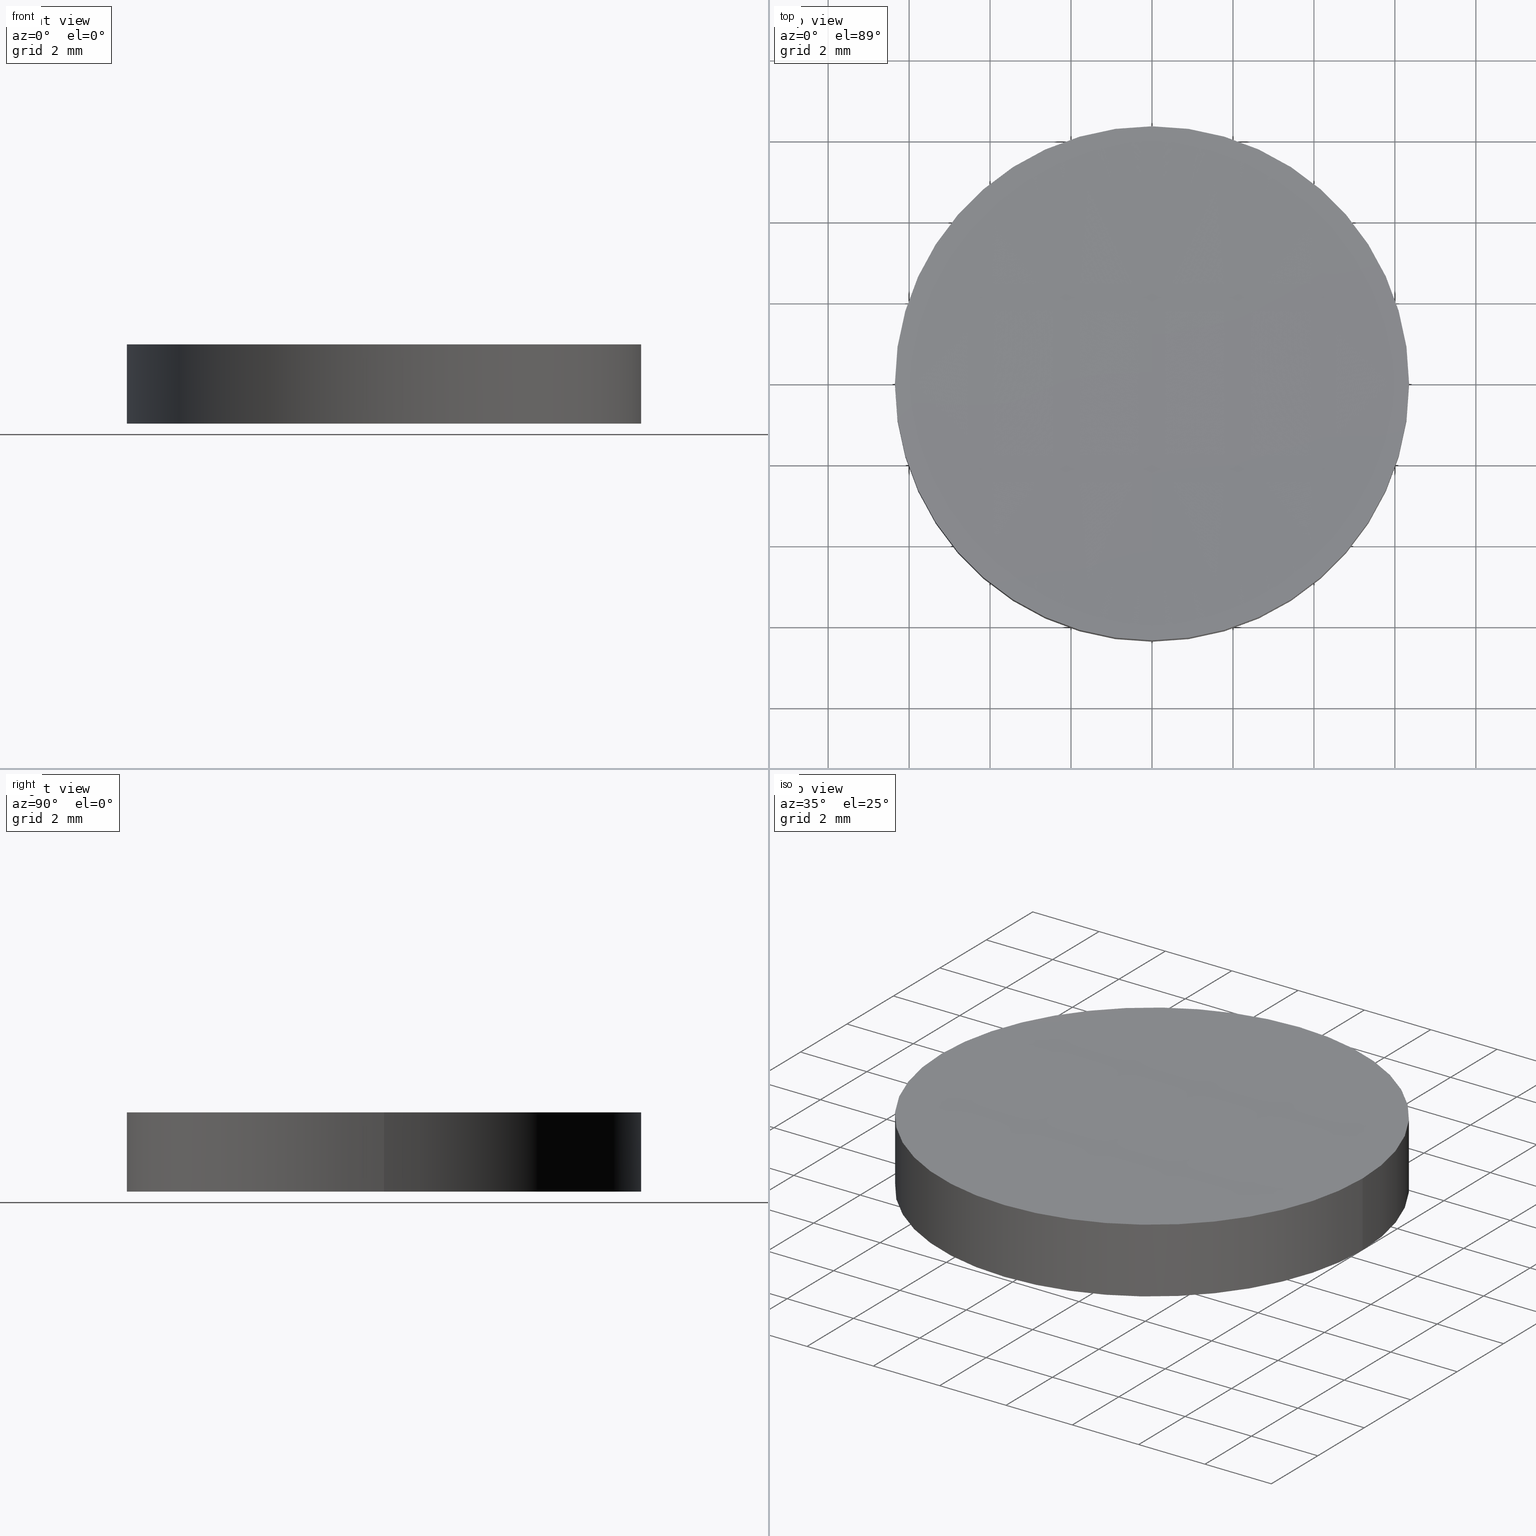
[diagram: canonical four-view strip — front | top / right | iso, engineering-drawing reading convention]
A machine part, canonical four-view strip (front | top / right | iso — engineering-drawing reading convention). The complete STEP part file that produces these views, byte-faithful:
ISO-10303-21;
HEADER;
FILE_DESCRIPTION (( 'STEP AP203' ),
    '1' );
FILE_NAME ('114-0132E BK7 bi-cv 12.7 F-250.STEP',
    '2019-01-21T00:25:54',
    ( '' ),
    ( '' ),
    'SwSTEP 2.0',
    'SolidWorks 2017',
    '' );
FILE_SCHEMA (( 'CONFIG_CONTROL_DESIGN' ));
ENDSEC;

DATA;
#1 = DIRECTION ( 'NONE',  ( 1.000000000000000000, 0.0000000000000000000, 0.0000000000000000000 ) ) ;
#2 = APPROVAL_DATE_TIME ( #141, #48 ) ;
#3 = CARTESIAN_POINT ( 'NONE',  ( -2.128980519806766400, -6.426184536089220200, -0.07951900455132468500 ) ) ;
#4 = ORIENTED_EDGE ( 'NONE', *, *, #233, .T. ) ;
#5 = CARTESIAN_POINT ( 'NONE',  ( 6.349999999999999600, 1.221245327087670000E-015, -0.07764445256259830400 ) ) ;
#6 = CARTESIAN_POINT ( 'NONE',  ( 2.129850009775330100, -2.142498861219060300, 0.02651174670438362400 ) ) ;
#7 = APPROVAL_STATUS ( 'not_yet_approved' ) ;
#8 = AXIS2_PLACEMENT_3D ( 'NONE', #32, #264, #73 ) ;
#9 = PERSON_AND_ORGANIZATION_ROLE ( 'design_owner' ) ;
#10 = CARTESIAN_POINT ( 'NONE',  ( -4.259538903191590900, -2.142498861219060700, 1.799685226399271100 ) ) ;
#11 = LOCAL_TIME ( 2, 25, 54.00000000000000000, #67 ) ;
#12 = VERTEX_POINT ( 'NONE', #107 ) ;
#13 = AXIS2_PLACEMENT_3D ( 'NONE', #114, #276, #89 ) ;
#14 = ORGANIZATION ( 'UNSPECIFIED', 'UNSPECIFIED', '' ) ;
#15 = CARTESIAN_POINT ( 'NONE',  ( 2.128980519806762000, 6.426184536089197200, 1.879519004551348300 ) ) ;
#16 = ORIENTED_EDGE ( 'NONE', *, *, #109, .T. ) ;
#17 = DIRECTION ( 'NONE',  ( 0.0000000000000000000, 0.0000000000000000000, 1.000000000000000000 ) ) ;
#18 = DIRECTION ( 'NONE',  ( -1.000000000000000000, -2.237857218932010100E-016, -3.277692368538199900E-017 ) ) ;
#19 = DATE_AND_TIME ( #79, #110 ) ;
#20 =( GEOMETRIC_REPRESENTATION_CONTEXT ( 3 ) GLOBAL_UNCERTAINTY_ASSIGNED_CONTEXT ( ( #289 ) ) GLOBAL_UNIT_ASSIGNED_CONTEXT ( ( #102, #97, #242 ) ) REPRESENTATION_CONTEXT ( 'NONE', 'WORKASPACE' ) );
#21 = CARTESIAN_POINT ( 'NONE',  ( 9.519578976003125300E-014, -6.349999999999807800, 1.877644452562605000 ) ) ;
#22 = PERSON_AND_ORGANIZATION ( #122, #14 ) ;
#23 = ORIENTED_EDGE ( 'NONE', *, *, #277, .F. ) ;
#24 = CARTESIAN_POINT ( 'NONE',  ( -2.129850009775576100, 2.142498861219035400, 0.02651174670439010800 ) ) ;
#25 = CARTESIAN_POINT ( 'NONE',  ( -9.425762500011748200E-014, -2.142498861219060300, 0.02651174670438355100 ) ) ;
#26 = EDGE_LOOP ( 'NONE', ( #60, #111, #16, #281, #49, #139 ) ) ;
#27 = APPROVAL_ROLE ( '' ) ;
#28 = CARTESIAN_POINT ( 'NONE',  ( -6.388744471906244700, 2.142498861219033700, 1.852075209171659700 ) ) ;
#29 = PERSON_AND_ORGANIZATION ( #122, #14 ) ;
#30 = CIRCLE ( 'NONE', #159, 259.6999999999999900 ) ;
#31 = AXIS2_PLACEMENT_3D ( 'NONE', #148, #118, #45 ) ;
#32 = CARTESIAN_POINT ( 'NONE',  ( 2.498001805406600200E-016, 1.221245327087670000E-015, 1.877644452562599900 ) ) ;
#33 = ORIENTED_EDGE ( 'NONE', *, *, #163, .F. ) ;
#34 = FACE_OUTER_BOUND ( 'NONE', #284, .T. ) ;
#35 = ADVANCED_FACE ( 'NONE', ( #155 ), #279, .F. ) ;
#36 = CARTESIAN_POINT ( 'NONE',  ( 2.129850009775577000, -2.142498861219059000, 1.773488253295633300 ) ) ;
#37 = ORIENTED_EDGE ( 'NONE', *, *, #233, .F. ) ;
#38 = EDGE_CURVE ( 'NONE', #197, #12, #202, .T. ) ;
#39 = DIRECTION ( 'NONE',  ( -2.237857218932010100E-016, 1.000000000000000000, 0.0000000000000000000 ) ) ;
#40 = FACE_OUTER_BOUND ( 'NONE', #26, .T. ) ;
#41 = EDGE_LOOP ( 'NONE', ( #188, #246, #266, #4, #288, #33 ) ) ;
#42 = CARTESIAN_POINT ( 'NONE',  ( 8.526512829121199700E-014, 0.0000000000000000000, 261.5000000000000000 ) ) ;
#43 = CARTESIAN_POINT ( 'NONE',  ( 9.233660063853434100E-014, 6.426184536089196300, 1.879519004551355500 ) ) ;
#44 = CARTESIAN_POINT ( 'NONE',  ( 6.386136330860566100, -6.426184536089222900, -0.1580738780884536900 ) ) ;
#45 = DIRECTION ( 'NONE',  ( 1.000000000000000000, 0.0000000000000000000, 0.0000000000000000000 ) ) ;
#46 = CARTESIAN_POINT ( 'NONE',  ( -2.128980519806519500, 6.426184536089195400, 1.879519004551355500 ) ) ;
#47 = APPROVAL_STATUS ( 'not_yet_approved' ) ;
#48 = APPROVAL ( #7, 'UNSPECIFIED' ) ;
#49 = ORIENTED_EDGE ( 'NONE', *, *, #100, .T. ) ;
#50 = EDGE_CURVE ( 'NONE', #103, #197, #87, .T. ) ;
#51 = CARTESIAN_POINT ( 'NONE',  ( -6.388744471906243800, -2.142498861219061600, 1.852075209171659200 ) ) ;
#52 = PERSON_AND_ORGANIZATION_ROLE ( 'creator' ) ;
#53 = APPLICATION_CONTEXT ( 'configuration controlled 3d designs of mechanical parts and assemblies' ) ;
#54 = ORIENTED_EDGE ( 'NONE', *, *, #109, .F. ) ;
#55 = PRODUCT_DEFINITION ( 'UNKNOWN', '', #75, #250 ) ;
#56 = CARTESIAN_POINT ( 'NONE',  ( -9.235371109198769400E-014, 6.349999999999808700, -0.07764445256259233700 ) ) ;
#57 = CARTESIAN_POINT ( 'NONE',  ( 6.388744471906481000, 2.142498861219036800, 1.852075209171677700 ) ) ;
#58 = CARTESIAN_POINT ( 'NONE',  ( 6.386136330860806800, -6.426184536089219400, 1.958073878088495400 ) ) ;
#59 = AXIS2_PLACEMENT_3D ( 'NONE', #198, #133, #218 ) ;
#60 = ORIENTED_EDGE ( 'NONE', *, *, #38, .F. ) ;
#61 = DIRECTION ( 'NONE',  ( -0.0000000000000000000, -0.0000000000000000000, -1.000000000000000000 ) ) ;
#62 = DIRECTION ( 'NONE',  ( 0.0000000000000000000, 0.0000000000000000000, 1.000000000000000000 ) ) ;
#63 = CARTESIAN_POINT ( 'NONE',  ( 4.257799989028111300, 6.426184536089195400, -0.1057052830026524400 ) ) ;
#64 = LOCAL_TIME ( 2, 25, 54.00000000000000000, #290 ) ;
#65 = AXIS2_PLACEMENT_3D ( 'NONE', #203, #62, #185 ) ;
#66 = DIRECTION ( 'NONE',  ( -0.0000000000000000000, -0.0000000000000000000, -1.000000000000000000 ) ) ;
#67 = COORDINATED_UNIVERSAL_TIME_OFFSET ( 2, 0, .AHEAD. ) ;
#68 = VECTOR ( 'NONE', #138, 1000.000000000000000 ) ;
#69 = CARTESIAN_POINT ( 'NONE',  ( 6.388744471906244700, 2.142498861219033700, -0.05207520917163602900 ) ) ;
#70 = CARTESIAN_POINT ( 'NONE',  ( -4.259538903191835100, -2.142498861219058500, 0.0003147736007353074900 ) ) ;
#71 = DIRECTION ( 'NONE',  ( 0.0000000000000000000, 0.0000000000000000000, 1.000000000000000000 ) ) ;
#72 = APPROVAL ( #127, 'UNSPECIFIED' ) ;
#73 = DIRECTION ( 'NONE',  ( 1.000000000000000000, 0.0000000000000000000, 0.0000000000000000000 ) ) ;
#74 = APPROVAL_ROLE ( '' ) ;
#75 = PRODUCT_DEFINITION_FORMATION_WITH_SPECIFIED_SOURCE ( 'ANY', '', #209, .NOT_KNOWN. ) ;
#76 = DATE_AND_TIME ( #278, #11 ) ;
#77 = EDGE_LOOP ( 'NONE', ( #175, #274, #165 ) ) ;
#78 = CARTESIAN_POINT ( 'NONE',  ( -2.129850009775330100, -2.142498861219060300, 1.773488253295640400 ) ) ;
#79 = CALENDAR_DATE ( 2019, 21, 1 ) ;
#80 = CARTESIAN_POINT ( 'NONE',  ( -6.349999999999999600, 1.998896044546239400E-015, -0.07764445256259830400 ) ) ;
#81 = CARTESIAN_POINT ( 'NONE',  ( 1.569924745759010700E-013, -2.142498861219059900, 1.773488253295632600 ) ) ;
#82 = CIRCLE ( 'NONE', #59, 259.6999999999999900 ) ;
#83 =( BOUNDED_SURFACE ( )  B_SPLINE_SURFACE ( 3, 3, ( 
 ( #231, #254, #63, #142 ),
 ( #160, #164, #167, #69 ),
 ( #25, #6, #186, #166 ),
 ( #124, #189, #236, #44 ) ),
 .UNSPECIFIED., .F., .F., .F. ) 
 B_SPLINE_SURFACE_WITH_KNOTS ( ( 4, 4 ),
 ( 4, 4 ),
 ( 0.0000000000000000000, 1.000000000000000000 ),
 ( 0.0000000000000000000, 1.000000000000000000 ),
 .UNSPECIFIED. ) 
 GEOMETRIC_REPRESENTATION_ITEM ( )  RATIONAL_B_SPLINE_SURFACE ( (
 ( 1.000000000000000000, 0.9999495687932881100, 0.9999495687932881100, 1.000000000000000000),
 ( 0.9997958695814366200, 0.9997454486692680700, 0.9997454486692680700, 0.9997958695814366200),
 ( 0.9997958695814366200, 0.9997454486692680700, 0.9997454486692680700, 0.9997958695814366200),
 ( 1.000000000000000000, 0.9999495687932881100, 0.9999495687932881100, 1.000000000000000000) ) ) 
 REPRESENTATION_ITEM ( '' )  SURFACE ( )  );
#84 = CARTESIAN_POINT ( 'NONE',  ( 6.386136330860803200, 6.426184536089198000, 1.958073878088495400 ) ) ;
#85 = CC_DESIGN_APPROVAL ( #172, ( #75 ) ) ;
#86 = CARTESIAN_POINT ( 'NONE',  ( 4.259538903191835100, 2.142498861219035900, 1.799685226399288900 ) ) ;
#87 = CIRCLE ( 'NONE', #208, 6.349999999999999600 ) ;
#88 = DIRECTION ( 'NONE',  ( 1.000000000000000000, 0.0000000000000000000, 0.0000000000000000000 ) ) ;
#89 = DIRECTION ( 'NONE',  ( 1.000000000000000000, 0.0000000000000000000, 0.0000000000000000000 ) ) ;
#90 = DATE_AND_TIME ( #156, #64 ) ;
#91 = LINE ( 'NONE', #113, #180 ) ;
#92 = CC_DESIGN_PERSON_AND_ORGANIZATION_ASSIGNMENT ( #174, #192, ( #229 ) ) ;
#93 = CARTESIAN_POINT ( 'NONE',  ( -6.388744471906481900, -2.142498861219058500, -0.05207520917165357100 ) ) ;
#94 = VERTEX_POINT ( 'NONE', #158 ) ;
#95 = CARTESIAN_POINT ( 'NONE',  ( -6.386136330860806800, -6.426184536089219400, -0.1580738780884716200 ) ) ;
#96 = CARTESIAN_POINT ( 'NONE',  ( -6.386136330860569600, 6.426184536089194500, 1.958073878088477200 ) ) ;
#97 =( NAMED_UNIT ( * ) PLANE_ANGLE_UNIT ( ) SI_UNIT ( $, .RADIAN. ) );
#98 = COORDINATED_UNIVERSAL_TIME_OFFSET ( 2, 0, .AHEAD. ) ;
#99 = CIRCLE ( 'NONE', #65, 6.349999999999999600 ) ;
#100 = EDGE_CURVE ( 'NONE', #131, #222, #238, .T. ) ;
#101 = DIRECTION ( 'NONE',  ( 1.000000000000000000, 0.0000000000000000000, 0.0000000000000000000 ) ) ;
#102 =( LENGTH_UNIT ( ) NAMED_UNIT ( * ) SI_UNIT ( .MILLI., .METRE. ) );
#103 = VERTEX_POINT ( 'NONE', #56 ) ;
#104 = CC_DESIGN_APPROVAL ( #72, ( #55 ) ) ;
#105 = PERSON_AND_ORGANIZATION ( #122, #14 ) ;
#106 =( BOUNDED_SURFACE ( )  B_SPLINE_SURFACE ( 3, 3, ( 
 ( #150, #145, #146, #210 ),
 ( #123, #255, #24, #282 ),
 ( #93, #70, #280, #207 ),
 ( #95, #212, #3, #258 ) ),
 .UNSPECIFIED., .F., .F., .T. ) 
 B_SPLINE_SURFACE_WITH_KNOTS ( ( 4, 4 ),
 ( 4, 4 ),
 ( 0.0000000000000000000, 1.000000000000000000 ),
 ( 0.0000000000000000000, 1.000000000000000000 ),
 .UNSPECIFIED. ) 
 GEOMETRIC_REPRESENTATION_ITEM ( )  RATIONAL_B_SPLINE_SURFACE ( (
 ( 1.000000000000000000, 0.9999495687932881100, 0.9999495687932881100, 1.000000000000000000),
 ( 0.9997958695814366200, 0.9997454486692680700, 0.9997454486692680700, 0.9997958695814366200),
 ( 0.9997958695814366200, 0.9997454486692680700, 0.9997454486692680700, 0.9997958695814366200),
 ( 1.000000000000000000, 0.9999495687932881100, 0.9999495687932881100, 1.000000000000000000) ) ) 
 REPRESENTATION_ITEM ( '' )  SURFACE ( )  );
#107 = CARTESIAN_POINT ( 'NONE',  ( -6.349999999999999600, 1.998896044546239400E-015, 1.877644452562599900 ) ) ;
#108 = CARTESIAN_POINT ( 'NONE',  ( 1.578598363138894500E-013, -6.426184536089221100, 1.879519004551347900 ) ) ;
#109 = EDGE_CURVE ( 'NONE', #94, #219, #170, .T. ) ;
#110 = LOCAL_TIME ( 2, 25, 54.00000000000000000, #98 ) ;
#111 = ORIENTED_EDGE ( 'NONE', *, *, #132, .T. ) ;
#112 = DIRECTION ( 'NONE',  ( -0.0000000000000000000, -0.0000000000000000000, -1.000000000000000000 ) ) ;
#113 = CARTESIAN_POINT ( 'NONE',  ( 6.349999999999999600, 1.221245327087670000E-015, -0.07764445256259830400 ) ) ;
#114 = CARTESIAN_POINT ( 'NONE',  ( 2.498001805406600200E-016, 1.221245327087670000E-015, -0.07764445256259830400 ) ) ;
#115 = SHAPE_DEFINITION_REPRESENTATION ( #137, #173 ) ;
#116 = ORIENTED_EDGE ( 'NONE', *, *, #178, .T. ) ;
#117 = CARTESIAN_POINT ( 'NONE',  ( 2.498001805406600200E-016, 1.221245327087670000E-015, 1.877644452562599900 ) ) ;
#118 = DIRECTION ( 'NONE',  ( 0.0000000000000000000, 0.0000000000000000000, 1.000000000000000000 ) ) ;
#119 = APPROVAL_PERSON_ORGANIZATION ( #217, #72, #196 ) ;
#120 = CYLINDRICAL_SURFACE ( 'NONE', #31, 6.349999999999999600 ) ;
#121 = CC_DESIGN_PERSON_AND_ORGANIZATION_ASSIGNMENT ( #265, #267, ( #75 ) ) ;
#122 = PERSON ( 'UNSPECIFIED', 'UNSPECIFIED', 'UNSPECIFIED', ('UNSPECIFIED'), ('UNSPECIFIED'), ('UNSPECIFIED') ) ;
#123 = CARTESIAN_POINT ( 'NONE',  ( -6.388744471906481000, 2.142498861219036800, -0.05207520917165399400 ) ) ;
#124 = CARTESIAN_POINT ( 'NONE',  ( -9.521277732938965700E-014, -6.426184536089221100, -0.07951900455133165100 ) ) ;
#125 = FACE_OUTER_BOUND ( 'NONE', #77, .T. ) ;
#126 = AXIS2_PLACEMENT_3D ( 'NONE', #205, #17, #1 ) ;
#127 = APPROVAL_STATUS ( 'not_yet_approved' ) ;
#128 = CARTESIAN_POINT ( 'NONE',  ( 9.521277732938964500E-014, -6.426184536089221100, 1.879519004551355500 ) ) ;
#129 = SECURITY_CLASSIFICATION_LEVEL ( 'unclassified' ) ;
#130 = APPROVAL_DATE_TIME ( #76, #72 ) ;
#131 = VERTEX_POINT ( 'NONE', #201 ) ;
#132 = EDGE_CURVE ( 'NONE', #197, #94, #99, .T. ) ;
#133 = DIRECTION ( 'NONE',  ( 1.000000000000000000, -2.237857218932010100E-016, 3.277692368538209700E-017 ) ) ;
#134 = CARTESIAN_POINT ( 'NONE',  ( 2.498001805406600200E-016, 1.221245327087670000E-015, -0.07764445256259830400 ) ) ;
#135 = CARTESIAN_POINT ( 'NONE',  ( 1.561251128379126400E-013, 2.142498861219035400, 1.773488253295633100 ) ) ;
#136 = EDGE_CURVE ( 'NONE', #219, #103, #292, .T. ) ;
#137 = PRODUCT_DEFINITION_SHAPE ( 'NONE', 'NONE',  #55 ) ;
#138 = DIRECTION ( 'NONE',  ( 0.0000000000000000000, 0.0000000000000000000, 1.000000000000000000 ) ) ;
#139 = ORIENTED_EDGE ( 'NONE', *, *, #147, .T. ) ;
#140 = CC_DESIGN_PERSON_AND_ORGANIZATION_ASSIGNMENT ( #273, #9, ( #209 ) ) ;
#141 = DATE_AND_TIME ( #161, #241 ) ;
#142 = CARTESIAN_POINT ( 'NONE',  ( 6.386136330860569600, 6.426184536089194500, -0.1580738780884536900 ) ) ;
#143 = AXIS2_PLACEMENT_3D ( 'NONE', #259, #71, #101 ) ;
#144 = PERSON_AND_ORGANIZATION ( #122, #14 ) ;
#145 = CARTESIAN_POINT ( 'NONE',  ( -4.257799989028350200, 6.426184536089197200, -0.1057052830026699600 ) ) ;
#146 = CARTESIAN_POINT ( 'NONE',  ( -2.128980519806762800, 6.426184536089197200, -0.07951900455132469800 ) ) ;
#147 = EDGE_CURVE ( 'NONE', #222, #12, #234, .T. ) ;
#148 = CARTESIAN_POINT ( 'NONE',  ( 2.498001805406600200E-016, 1.221245327087670000E-015, -0.07764445256259830400 ) ) ;
#149 = ORIENTED_EDGE ( 'NONE', *, *, #178, .F. ) ;
#150 = CARTESIAN_POINT ( 'NONE',  ( -6.386136330860803200, 6.426184536089198000, -0.1580738780884716200 ) ) ;
#151 = DATE_TIME_ROLE ( 'classification_date' ) ;
#152 = CIRCLE ( 'NONE', #8, 6.349999999999999600 ) ;
#153 = FACE_OUTER_BOUND ( 'NONE', #41, .T. ) ;
#154 = CARTESIAN_POINT ( 'NONE',  ( -2.128980519806516400, -6.426184536089222000, 1.879519004551355500 ) ) ;
#155 = FACE_OUTER_BOUND ( 'NONE', #257, .T. ) ;
#156 = CALENDAR_DATE ( 2019, 21, 1 ) ;
#157 = EDGE_LOOP ( 'NONE', ( #149, #37, #162 ) ) ;
#158 = CARTESIAN_POINT ( 'NONE',  ( -9.519578976003126600E-014, -6.349999999999807800, -0.07764445256259233700 ) ) ;
#159 = AXIS2_PLACEMENT_3D ( 'NONE', #42, #18, #39 ) ;
#160 = CARTESIAN_POINT ( 'NONE',  ( -9.329870369149096200E-014, 2.142498861219035000, 0.02651174670438313100 ) ) ;
#161 = CALENDAR_DATE ( 2019, 21, 1 ) ;
#162 = ORIENTED_EDGE ( 'NONE', *, *, #147, .F. ) ;
#163 = EDGE_CURVE ( 'NONE', #219, #131, #91, .T. ) ;
#164 = CARTESIAN_POINT ( 'NONE',  ( 2.129850009775331000, 2.142498861219034100, 0.02651174670438319700 ) ) ;
#165 = ORIENTED_EDGE ( 'NONE', *, *, #132, .F. ) ;
#166 = CARTESIAN_POINT ( 'NONE',  ( 6.388744471906243800, -2.142498861219061600, -0.05207520917163560600 ) ) ;
#167 = CARTESIAN_POINT ( 'NONE',  ( 4.259538903191592700, 2.142498861219033700, 0.0003147736007524107800 ) ) ;
#168 = CC_DESIGN_PERSON_AND_ORGANIZATION_ASSIGNMENT ( #22, #221, ( #55 ) ) ;
#169 = DATE_AND_TIME ( #237, #256 ) ;
#170 = CIRCLE ( 'NONE', #13, 6.349999999999999600 ) ;
#171 = CARTESIAN_POINT ( 'NONE',  ( 9.425762500011747000E-014, -2.142498861219060300, 1.773488253295640200 ) ) ;
#172 = APPROVAL ( #47, 'UNSPECIFIED' ) ;
#173 = ADVANCED_BREP_SHAPE_REPRESENTATION ( '114-0132E BK7 bi-cv 12.7 F-250', ( #216, #214 ), #20 ) ;
#174 = PERSON_AND_ORGANIZATION ( #122, #14 ) ;
#175 = ORIENTED_EDGE ( 'NONE', *, *, #50, .F. ) ;
#176 = CIRCLE ( 'NONE', #243, 6.349999999999999600 ) ;
#177 = CC_DESIGN_PERSON_AND_ORGANIZATION_ASSIGNMENT ( #105, #52, ( #75 ) ) ;
#178 = EDGE_CURVE ( 'NONE', #227, #222, #30, .T. ) ;
#179 = ADVANCED_FACE ( 'NONE', ( #34 ), #83, .F. ) ;
#180 = VECTOR ( 'NONE', #275, 1000.000000000000000 ) ;
#181 = DIRECTION ( 'NONE',  ( 1.000000000000000000, 0.0000000000000000000, 0.0000000000000000000 ) ) ;
#182 = CC_DESIGN_SECURITY_CLASSIFICATION ( #229, ( #75 ) ) ;
#183 = ADVANCED_FACE ( 'NONE', ( #125 ), #106, .F. ) ;
#184 = CC_DESIGN_DATE_AND_TIME_ASSIGNMENT ( #90, #245, ( #55 ) ) ;
#185 = DIRECTION ( 'NONE',  ( 1.000000000000000000, 0.0000000000000000000, 0.0000000000000000000 ) ) ;
#186 = CARTESIAN_POINT ( 'NONE',  ( 4.259538903191590900, -2.142498861219060700, 0.0003147736007528309100 ) ) ;
#187 = APPROVAL_PERSON_ORGANIZATION ( #29, #172, #74 ) ;
#188 = ORIENTED_EDGE ( 'NONE', *, *, #136, .T. ) ;
#189 = CARTESIAN_POINT ( 'NONE',  ( 2.128980519806516400, -6.426184536089222000, -0.07951900455133156800 ) ) ;
#190 = DIRECTION ( 'NONE',  ( 1.000000000000000000, -8.881784197001252300E-016, 0.0000000000000000000 ) ) ;
#191 = CARTESIAN_POINT ( 'NONE',  ( -6.349999999999999600, 1.998896044546239400E-015, -0.07764445256259830400 ) ) ;
#192 = PERSON_AND_ORGANIZATION_ROLE ( 'classification_officer' ) ;
#193 = CARTESIAN_POINT ( 'NONE',  ( -6.386136330860566100, -6.426184536089222900, 1.958073878088477200 ) ) ;
#194 = PRODUCT_RELATED_PRODUCT_CATEGORY ( 'detail', '', ( #209 ) ) ;
#195 = EDGE_CURVE ( 'NONE', #227, #131, #176, .T. ) ;
#196 = APPROVAL_ROLE ( '' ) ;
#197 = VERTEX_POINT ( 'NONE', #191 ) ;
#198 = CARTESIAN_POINT ( 'NONE',  ( -8.526512829121199700E-014, 0.0000000000000000000, -259.6999999999999900 ) ) ;
#199 = COORDINATED_UNIVERSAL_TIME_OFFSET ( 2, 0, .AHEAD. ) ;
#200 = CARTESIAN_POINT ( 'NONE',  ( 4.259538903191835100, -2.142498861219058500, 1.799685226399288400 ) ) ;
#201 = CARTESIAN_POINT ( 'NONE',  ( 6.349999999999999600, 1.221245327087670000E-015, 1.877644452562599900 ) ) ;
#202 = LINE ( 'NONE', #80, #68 ) ;
#203 = CARTESIAN_POINT ( 'NONE',  ( 2.498001805406600200E-016, 1.221245327087670000E-015, -0.07764445256259830400 ) ) ;
#204 = CC_DESIGN_DATE_AND_TIME_ASSIGNMENT ( #19, #151, ( #229 ) ) ;
#205 = CARTESIAN_POINT ( 'NONE',  ( 2.498001805406600200E-016, 1.221245327087670000E-015, -0.07764445256259830400 ) ) ;
#206 = APPROVAL_DATE_TIME ( #169, #172 ) ;
#207 = CARTESIAN_POINT ( 'NONE',  ( -1.569924745759010700E-013, -2.142498861219059900, 0.02651174670439112800 ) ) ;
#208 = AXIS2_PLACEMENT_3D ( 'NONE', #134, #247, #291 ) ;
#209 = PRODUCT ( '114-0132E BK7 bi-cv 12.7 F-250', '114-0132E BK7 bi-cv 12.7 F-250', '', ( #283 ) ) ;
#210 = CARTESIAN_POINT ( 'NONE',  ( -1.552577510999242300E-013, 6.426184536089196300, -0.07951900455132412900 ) ) ;
#211 = ORIENTED_EDGE ( 'NONE', *, *, #100, .F. ) ;
#212 = CARTESIAN_POINT ( 'NONE',  ( -4.257799989028353800, -6.426184536089220200, -0.1057052830026699400 ) ) ;
#213 = DIRECTION ( 'NONE',  ( 0.0000000000000000000, 0.0000000000000000000, 1.000000000000000000 ) ) ;
#214 = AXIS2_PLACEMENT_3D ( 'NONE', #220, #213, #285 ) ;
#215 = APPLICATION_PROTOCOL_DEFINITION ( 'international standard', 'config_control_design', 1994, #53 ) ;
#216 = MANIFOLD_SOLID_BREP ( 'Imported1', #270 ) ;
#217 = PERSON_AND_ORGANIZATION ( #122, #14 ) ;
#218 = DIRECTION ( 'NONE',  ( 2.237857218932010100E-016, 1.000000000000000000, 0.0000000000000000000 ) ) ;
#219 = VERTEX_POINT ( 'NONE', #5 ) ;
#220 = CARTESIAN_POINT ( 'NONE',  ( 0.0000000000000000000, 0.0000000000000000000, 0.0000000000000000000 ) ) ;
#221 = PERSON_AND_ORGANIZATION_ROLE ( 'creator' ) ;
#222 = VERTEX_POINT ( 'NONE', #21 ) ;
#223 = CARTESIAN_POINT ( 'NONE',  ( 6.388744471906481900, -2.142498861219058500, 1.852075209171677200 ) ) ;
#224 =( BOUNDED_SURFACE ( )  B_SPLINE_SURFACE ( 3, 3, ( 
 ( #43, #46, #240, #96 ),
 ( #235, #286, #268, #28 ),
 ( #171, #78, #10, #51 ),
 ( #128, #154, #263, #193 ) ),
 .UNSPECIFIED., .F., .F., .F. ) 
 B_SPLINE_SURFACE_WITH_KNOTS ( ( 4, 4 ),
 ( 4, 4 ),
 ( 0.0000000000000000000, 1.000000000000000000 ),
 ( 0.0000000000000000000, 1.000000000000000000 ),
 .UNSPECIFIED. ) 
 GEOMETRIC_REPRESENTATION_ITEM ( )  RATIONAL_B_SPLINE_SURFACE ( (
 ( 1.000000000000000000, 0.9999495687932881100, 0.9999495687932881100, 1.000000000000000000),
 ( 0.9997958695814366200, 0.9997454486692680700, 0.9997454486692680700, 0.9997958695814366200),
 ( 0.9997958695814366200, 0.9997454486692680700, 0.9997454486692680700, 0.9997958695814366200),
 ( 1.000000000000000000, 0.9999495687932881100, 0.9999495687932881100, 1.000000000000000000) ) ) 
 REPRESENTATION_ITEM ( '' )  SURFACE ( )  );
#225 = CARTESIAN_POINT ( 'NONE',  ( 1.543903893619358300E-013, 6.426184536089196300, 1.879519004551347900 ) ) ;
#226 = ADVANCED_FACE ( 'NONE', ( #40 ), #120, .T. ) ;
#227 = VERTEX_POINT ( 'NONE', #239 ) ;
#228 = CARTESIAN_POINT ( 'NONE',  ( 2.498001805406600200E-016, 1.221245327087670000E-015, 1.877644452562599900 ) ) ;
#229 = SECURITY_CLASSIFICATION ( '', '', #129 ) ;
#230 = ADVANCED_FACE ( 'NONE', ( #232 ), #224, .F. ) ;
#231 = CARTESIAN_POINT ( 'NONE',  ( -9.233660063853435400E-014, 6.426184536089196300, -0.07951900455133165100 ) ) ;
#232 = FACE_OUTER_BOUND ( 'NONE', #157, .T. ) ;
#233 = EDGE_CURVE ( 'NONE', #12, #227, #152, .T. ) ;
#234 = CIRCLE ( 'NONE', #269, 6.349999999999999600 ) ;
#235 = CARTESIAN_POINT ( 'NONE',  ( 9.329870369149094900E-014, 2.142498861219035000, 1.773488253295640600 ) ) ;
#236 = CARTESIAN_POINT ( 'NONE',  ( 4.257799989028107700, -6.426184536089222000, -0.1057052830026524600 ) ) ;
#237 = CALENDAR_DATE ( 2019, 21, 1 ) ;
#238 = CIRCLE ( 'NONE', #293, 6.349999999999999600 ) ;
#239 = CARTESIAN_POINT ( 'NONE',  ( 9.235371109198768200E-014, 6.349999999999808700, 1.877644452562605000 ) ) ;
#240 = CARTESIAN_POINT ( 'NONE',  ( -4.257799989028111300, 6.426184536089195400, 1.905705283002675900 ) ) ;
#241 = LOCAL_TIME ( 2, 25, 54.00000000000000000, #199 ) ;
#242 =( NAMED_UNIT ( * ) SI_UNIT ( $, .STERADIAN. ) SOLID_ANGLE_UNIT ( ) );
#243 = AXIS2_PLACEMENT_3D ( 'NONE', #261, #66, #190 ) ;
#244 = CYLINDRICAL_SURFACE ( 'NONE', #143, 6.349999999999999600 ) ;
#245 = DATE_TIME_ROLE ( 'creation_date' ) ;
#246 = ORIENTED_EDGE ( 'NONE', *, *, #50, .T. ) ;
#247 = DIRECTION ( 'NONE',  ( 0.0000000000000000000, 0.0000000000000000000, 1.000000000000000000 ) ) ;
#248 = CARTESIAN_POINT ( 'NONE',  ( 2.128980519806765500, -6.426184536089220200, 1.879519004551348300 ) ) ;
#249 = ADVANCED_FACE ( 'NONE', ( #153 ), #244, .T. ) ;
#250 = DESIGN_CONTEXT ( 'detailed design', #53, 'design' ) ;
#251 = CARTESIAN_POINT ( 'NONE',  ( 2.129850009775576100, 2.142498861219035400, 1.773488253295633800 ) ) ;
#252 = ORIENTED_EDGE ( 'NONE', *, *, #195, .F. ) ;
#253 = CARTESIAN_POINT ( 'NONE',  ( 4.257799989028353800, -6.426184536089220200, 1.905705283002693700 ) ) ;
#254 = CARTESIAN_POINT ( 'NONE',  ( 2.128980519806519500, 6.426184536089195400, -0.07951900455133156800 ) ) ;
#255 = CARTESIAN_POINT ( 'NONE',  ( -4.259538903191835100, 2.142498861219035900, 0.0003147736007348873600 ) ) ;
#256 = LOCAL_TIME ( 2, 25, 54.00000000000000000, #294 ) ;
#257 = EDGE_LOOP ( 'NONE', ( #252, #116, #211 ) ) ;
#258 = CARTESIAN_POINT ( 'NONE',  ( -1.587271980518778500E-013, -6.426184536089221100, -0.07951900455132410200 ) ) ;
#259 = CARTESIAN_POINT ( 'NONE',  ( 2.498001805406600200E-016, 1.221245327087670000E-015, -0.07764445256259830400 ) ) ;
#260 = APPROVAL_PERSON_ORGANIZATION ( #144, #48, #27 ) ;
#261 = CARTESIAN_POINT ( 'NONE',  ( 2.498001805406600200E-016, 1.221245327087670000E-015, 1.877644452562599900 ) ) ;
#262 = APPLICATION_PROTOCOL_DEFINITION ( 'international standard', 'config_control_design', 1994, #287 ) ;
#263 = CARTESIAN_POINT ( 'NONE',  ( -4.257799989028107700, -6.426184536089222000, 1.905705283002675900 ) ) ;
#264 = DIRECTION ( 'NONE',  ( -0.0000000000000000000, -0.0000000000000000000, -1.000000000000000000 ) ) ;
#265 = PERSON_AND_ORGANIZATION ( #122, #14 ) ;
#266 = ORIENTED_EDGE ( 'NONE', *, *, #38, .T. ) ;
#267 = PERSON_AND_ORGANIZATION_ROLE ( 'design_supplier' ) ;
#268 = CARTESIAN_POINT ( 'NONE',  ( -4.259538903191592700, 2.142498861219033700, 1.799685226399271500 ) ) ;
#269 = AXIS2_PLACEMENT_3D ( 'NONE', #117, #61, #181 ) ;
#270 = CLOSED_SHELL ( 'NONE', ( #183, #35, #249, #179, #226, #230 ) ) ;
#271 = CC_DESIGN_APPROVAL ( #48, ( #229 ) ) ;
#272 = CARTESIAN_POINT ( 'NONE',  ( 4.257799989028350200, 6.426184536089197200, 1.905705283002693700 ) ) ;
#273 = PERSON_AND_ORGANIZATION ( #122, #14 ) ;
#274 = ORIENTED_EDGE ( 'NONE', *, *, #277, .T. ) ;
#275 = DIRECTION ( 'NONE',  ( 0.0000000000000000000, 0.0000000000000000000, 1.000000000000000000 ) ) ;
#276 = DIRECTION ( 'NONE',  ( 0.0000000000000000000, 0.0000000000000000000, 1.000000000000000000 ) ) ;
#277 = EDGE_CURVE ( 'NONE', #103, #94, #82, .T. ) ;
#278 = CALENDAR_DATE ( 2019, 21, 1 ) ;
#279 =( BOUNDED_SURFACE ( )  B_SPLINE_SURFACE ( 3, 3, ( 
 ( #84, #272, #15, #225 ),
 ( #57, #86, #251, #135 ),
 ( #223, #200, #36, #81 ),
 ( #58, #253, #248, #108 ) ),
 .UNSPECIFIED., .F., .F., .F. ) 
 B_SPLINE_SURFACE_WITH_KNOTS ( ( 4, 4 ),
 ( 4, 4 ),
 ( 0.0000000000000000000, 1.000000000000000000 ),
 ( 0.0000000000000000000, 1.000000000000000000 ),
 .UNSPECIFIED. ) 
 GEOMETRIC_REPRESENTATION_ITEM ( )  RATIONAL_B_SPLINE_SURFACE ( (
 ( 1.000000000000000000, 0.9999495687932881100, 0.9999495687932881100, 1.000000000000000000),
 ( 0.9997958695814366200, 0.9997454486692680700, 0.9997454486692680700, 0.9997958695814366200),
 ( 0.9997958695814366200, 0.9997454486692680700, 0.9997454486692680700, 0.9997958695814366200),
 ( 1.000000000000000000, 0.9999495687932881100, 0.9999495687932881100, 1.000000000000000000) ) ) 
 REPRESENTATION_ITEM ( '' )  SURFACE ( )  );
#280 = CARTESIAN_POINT ( 'NONE',  ( -2.129850009775577000, -2.142498861219059000, 0.02651174670439054500 ) ) ;
#281 = ORIENTED_EDGE ( 'NONE', *, *, #163, .T. ) ;
#282 = CARTESIAN_POINT ( 'NONE',  ( -1.561251128379126400E-013, 2.142498861219035400, 0.02651174670439069400 ) ) ;
#283 = MECHANICAL_CONTEXT ( 'NONE', #287, 'mechanical' ) ;
#284 = EDGE_LOOP ( 'NONE', ( #23, #295, #54 ) ) ;
#285 = DIRECTION ( 'NONE',  ( 1.000000000000000000, 0.0000000000000000000, 0.0000000000000000000 ) ) ;
#286 = CARTESIAN_POINT ( 'NONE',  ( -2.129850009775331000, 2.142498861219034100, 1.773488253295640600 ) ) ;
#287 = APPLICATION_CONTEXT ( 'configuration controlled 3d designs of mechanical parts and assemblies' ) ;
#288 = ORIENTED_EDGE ( 'NONE', *, *, #195, .T. ) ;
#289 = UNCERTAINTY_MEASURE_WITH_UNIT (LENGTH_MEASURE( 1.000000000000000100E-005 ), #102, 'distance_accuracy_value', 'NONE');
#290 = COORDINATED_UNIVERSAL_TIME_OFFSET ( 2, 0, .AHEAD. ) ;
#291 = DIRECTION ( 'NONE',  ( 1.000000000000000000, 0.0000000000000000000, 0.0000000000000000000 ) ) ;
#292 = CIRCLE ( 'NONE', #126, 6.349999999999999600 ) ;
#293 = AXIS2_PLACEMENT_3D ( 'NONE', #228, #112, #88 ) ;
#294 = COORDINATED_UNIVERSAL_TIME_OFFSET ( 2, 0, .AHEAD. ) ;
#295 = ORIENTED_EDGE ( 'NONE', *, *, #136, .F. ) ;
ENDSEC;
END-ISO-10303-21;
